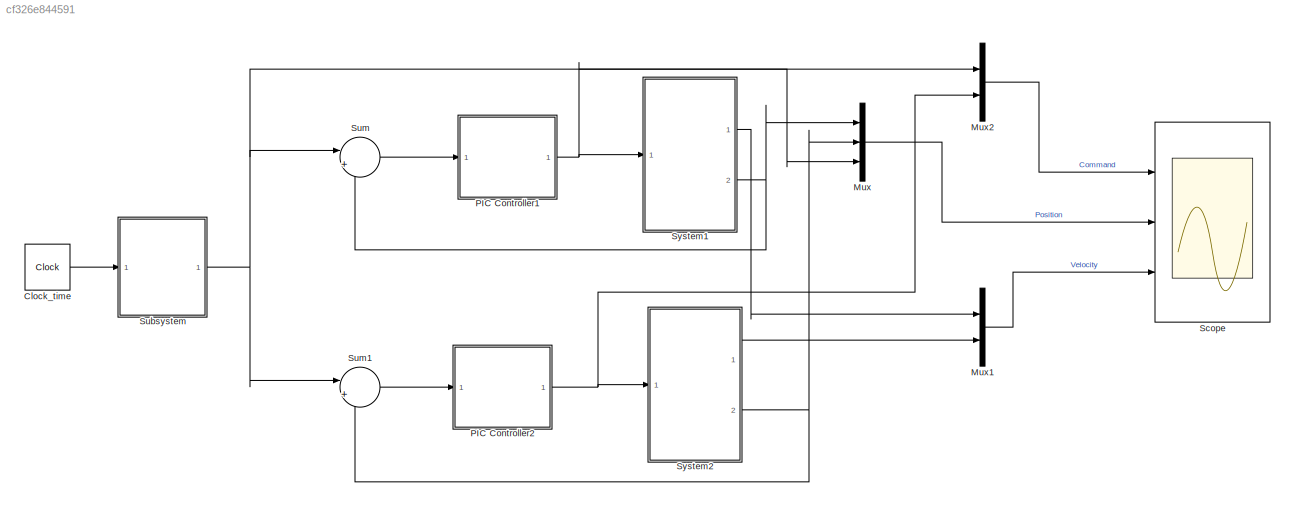
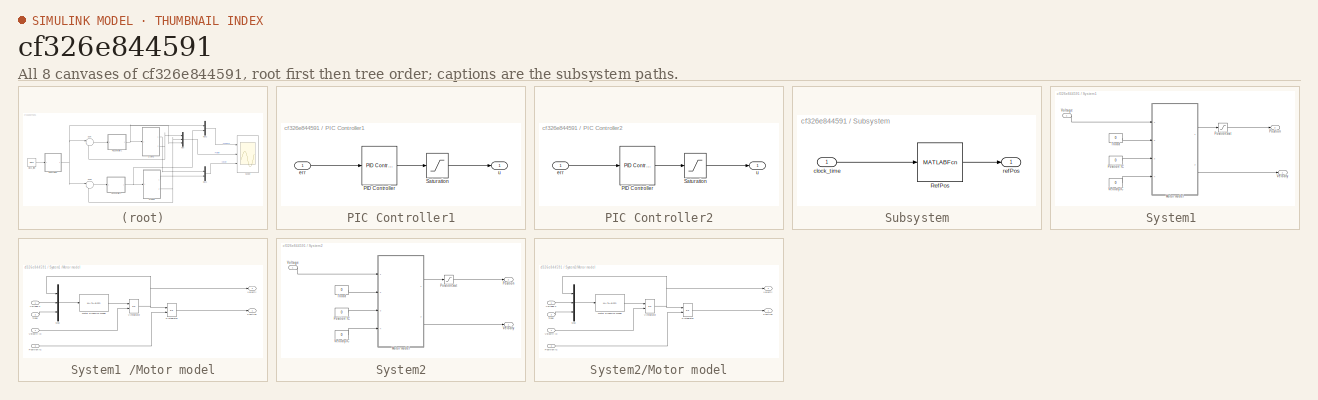
[diagram: thumbnail index - all 8 canvases of the model, root first then tree order]
MODEL slx_cf326e844591
KIND model
CONFIG AbsTol = auto
CONFIG EnableMultiTasking = off
CONFIG FixedStep = 1e-3
CONFIG MaxStep = auto
CONFIG MinStep = auto
CONFIG RelTol = 1e-3
CONFIG SampleTimeConstraint = Unconstrained
CONFIG Solver = ode5
CONFIG SolverName = ode5
CONFIG StartTime = 0.0
CONFIG StopTime = 1
BLOCK [Clock] Clock_time
BLOCK [Mux] Mux
  DisplayOption = bar
  Inputs = 3
  Ports = [3, 1]
BLOCK [Mux] Mux1
  DisplayOption = bar
  Inputs = 2
  Ports = [2, 1]
BLOCK [Mux] Mux2
  DisplayOption = bar
  Inputs = 2
  Ports = [2, 1]
BLOCK [SubSystem] PIC Controller1
  Ports = [1, 1]
  RequestExecContextInheritance = off
  Variant = off
BLOCK [Reference] PIC Controller1/PID Controller  REF=simulink/Continuous/PID Controller
  Ports = [1, 1]
  SourceBlock = simulink/Continuous/PID Controller
  SourceProductBaseCode = SL
  SourceProductName = Simulink
  SourceType = PID 1dof
BLOCK [Saturate] PIC Controller1/Saturation
  InputPortMap = u0
  LowerLimit = -15
  Ports = [1, 1]
  UpperLimit = 15
BLOCK [Inport] PIC Controller1/err
  IconDisplay = Port number
BLOCK [Outport] PIC Controller1/u
  IconDisplay = Port number
BLOCK [SubSystem] PIC Controller2
  Ports = [1, 1]
  RequestExecContextInheritance = off
  Variant = off
BLOCK [Reference] PIC Controller2/PID Controller  REF=simulink/Continuous/PID Controller
  Ports = [1, 1]
  SourceBlock = simulink/Continuous/PID Controller
  SourceProductBaseCode = SL
  SourceProductName = Simulink
  SourceType = PID 1dof
BLOCK [Saturate] PIC Controller2/Saturation
  InputPortMap = u0
  LowerLimit = -15
  Ports = [1, 1]
  UpperLimit = 15
BLOCK [Inport] PIC Controller2/err
  IconDisplay = Port number
BLOCK [Outport] PIC Controller2/u
  IconDisplay = Port number
BLOCK [Scope] Scope
  NumInputPorts = 3
  Ports = [3]
  ScopeSpecificationString = Simulink.scopes.TimeScopeBlockCfg('CurrentConfiguration', extmgr.ConfigurationSet(extmgr.Configuration('Core','General UI',true),extmgr.Configuration('Core','Source UI',true),extmgr.Configuration('Sources','WiredSimulink',true),extmgr.Configuration('Visuals','Time Domain',true,'SerializedDisplays',{struct('MinYLimReal','4.95926','MaxYLimReal','17.51028','YLabelReal','','MinYLimMag','4.95926','MaxY...<+2755ch>
BLOCK [SubSystem] Subsystem
  Ports = [1, 1]
  RequestExecContextInheritance = off
  Variant = off
BLOCK [MATLABFcn] Subsystem/RefPos
  MATLABFcn = Poly5Position
  Ports = [1, 1]
BLOCK [Inport] Subsystem/clock_time
  IconDisplay = Port number
BLOCK [Outport] Subsystem/refPos
  IconDisplay = Port number
BLOCK [Sum] Sum
  IconShape = round
  InputSameDT = off
  Inputs = |+-
  OutDataTypeStr = Inherit: Inherit via internal rule
  Ports = [2, 1]
  SaturateOnIntegerOverflow = off
BLOCK [Sum] Sum1
  IconShape = round
  InputSameDT = off
  Inputs = |+-
  OutDataTypeStr = Inherit: Inherit via internal rule
  Ports = [2, 1]
  SaturateOnIntegerOverflow = off
BLOCK [SubSystem] System1 
  Ports = [1, 2]
  RequestExecContextInheritance = off
  Variant = off
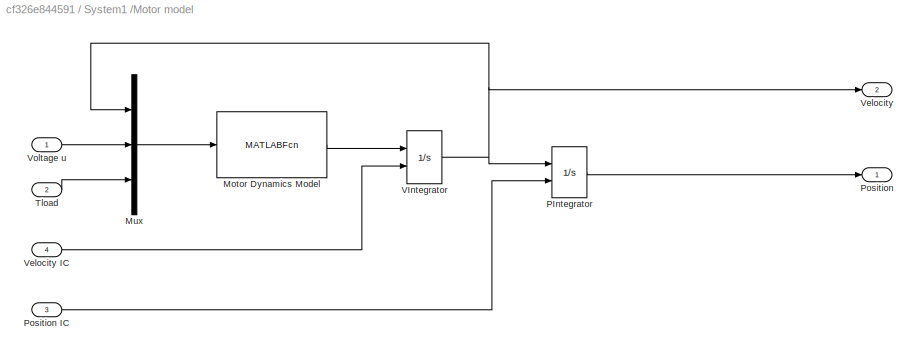
BLOCK [SubSystem] System1 /Motor model
  Ports = [4, 2]
  RequestExecContextInheritance = off
  Variant = off
BLOCK [MATLABFcn] System1 /Motor model/Motor Dynamics Model
  MATLABFcn = MotorDynamicsModel
  Ports = [1, 1]
BLOCK [Mux] System1 /Motor model/Mux
  DisplayOption = bar
  Inputs = 3
  Ports = [3, 1]
BLOCK [Integrator] System1 /Motor model/PIntegrator
  InitialConditionSource = external
  Ports = [2, 1]
BLOCK [Outport] System1 /Motor model/Position
  IconDisplay = Port number
BLOCK [Inport] System1 /Motor model/Position IC
  IconDisplay = Port number
  Port = 3
BLOCK [Inport] System1 /Motor model/Tload
  IconDisplay = Port number
  Port = 2
BLOCK [Integrator] System1 /Motor model/VIntegrator 
  InitialConditionSource = external
  Ports = [2, 1]
BLOCK [Outport] System1 /Motor model/Velocity
  IconDisplay = Port number
  Port = 2
BLOCK [Inport] System1 /Motor model/Velocity IC
  IconDisplay = Port number
  Port = 4
BLOCK [Inport] System1 /Motor model/Voltage u
  IconDisplay = Port number
BLOCK [Outport] System1 /Position
  IconDisplay = Port number
  Port = 2
BLOCK [Constant] System1 /Position IC
  Value = 0
BLOCK [Saturate] System1 /PositionSat
  InputPortMap = u0
  Ports = [1, 1]
BLOCK [Constant] System1 /Tload
  Value = 0
BLOCK [Outport] System1 /Velocity
  IconDisplay = Port number
BLOCK [Constant] System1 /Velocity IC
  Value = 0
BLOCK [Inport] System1 /Voltage
  IconDisplay = Port number
BLOCK [SubSystem] System2
  Ports = [1, 2]
  RequestExecContextInheritance = off
  Variant = off
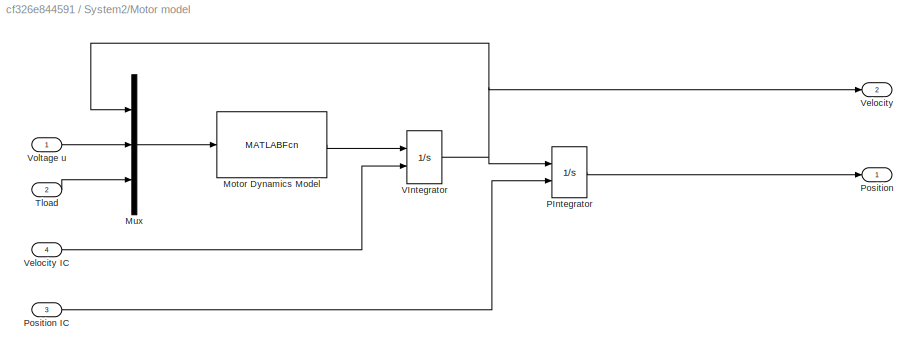
BLOCK [SubSystem] System2/Motor model
  Ports = [4, 2]
  RequestExecContextInheritance = off
  Variant = off
BLOCK [MATLABFcn] System2/Motor model/Motor Dynamics Model
  MATLABFcn = MotorDynamicsModel
  Ports = [1, 1]
BLOCK [Mux] System2/Motor model/Mux
  DisplayOption = bar
  Inputs = 3
  Ports = [3, 1]
BLOCK [Integrator] System2/Motor model/PIntegrator
  InitialConditionSource = external
  Ports = [2, 1]
BLOCK [Outport] System2/Motor model/Position
  IconDisplay = Port number
BLOCK [Inport] System2/Motor model/Position IC
  IconDisplay = Port number
  Port = 3
BLOCK [Inport] System2/Motor model/Tload
  IconDisplay = Port number
  Port = 2
BLOCK [Integrator] System2/Motor model/VIntegrator 
  InitialConditionSource = external
  Ports = [2, 1]
BLOCK [Outport] System2/Motor model/Velocity
  IconDisplay = Port number
  Port = 2
BLOCK [Inport] System2/Motor model/Velocity IC
  IconDisplay = Port number
  Port = 4
BLOCK [Inport] System2/Motor model/Voltage u
  IconDisplay = Port number
BLOCK [Outport] System2/Position
  IconDisplay = Port number
  Port = 2
BLOCK [Constant] System2/Position IC
  Value = 0
BLOCK [Saturate] System2/PositionSat
  InputPortMap = u0
  Ports = [1, 1]
BLOCK [Constant] System2/Tload
  Value = 0
BLOCK [Outport] System2/Velocity
  IconDisplay = Port number
BLOCK [Constant] System2/Velocity IC
  Value = 0
BLOCK [Inport] System2/Voltage
  IconDisplay = Port number
LINE Clock_time:1 -> Subsystem:1
LINE Mux1:1 -> Scope:3
LINE Mux2:1 -> Scope:1
LINE Mux:1 -> Scope:2
LINE PIC Controller1/PID Controller:1 -> PIC Controller1/Saturation:1
LINE PIC Controller1/Saturation:1 -> PIC Controller1/u:1
LINE PIC Controller1/err:1 -> PIC Controller1/PID Controller:1
NET PIC Controller1:1 -> Mux2:1, System1 :1
LINE PIC Controller2/PID Controller:1 -> PIC Controller2/Saturation:1
LINE PIC Controller2/Saturation:1 -> PIC Controller2/u:1
LINE PIC Controller2/err:1 -> PIC Controller2/PID Controller:1
NET PIC Controller2:1 -> Mux2:2, System2:1
LINE Subsystem/RefPos:1 -> Subsystem/refPos:1
LINE Subsystem/clock_time:1 -> Subsystem/RefPos:1
NET Subsystem:1 -> Mux:3, Sum1:1, Sum:1
LINE Sum1:1 -> PIC Controller2:1
LINE Sum:1 -> PIC Controller1:1
LINE System1 /Motor model/Motor Dynamics Model:1 -> System1 /Motor model/VIntegrator :1
LINE System1 /Motor model/Mux:1 -> System1 /Motor model/Motor Dynamics Model:1
LINE System1 /Motor model/PIntegrator:1 -> System1 /Motor model/Position:1
LINE System1 /Motor model/Position IC:1 -> System1 /Motor model/PIntegrator:2
LINE System1 /Motor model/Tload:1 -> System1 /Motor model/Mux:3
NET System1 /Motor model/VIntegrator :1 -> System1 /Motor model/Mux:1, System1 /Motor model/PIntegrator:1, System1 /Motor model/Velocity:1
LINE System1 /Motor model/Velocity IC:1 -> System1 /Motor model/VIntegrator :2
LINE System1 /Motor model/Voltage u:1 -> System1 /Motor model/Mux:2
LINE System1 /Motor model:1 -> System1 /PositionSat:1
LINE System1 /Motor model:2 -> System1 /Velocity:1
LINE System1 /Position IC:1 -> System1 /Motor model:3
LINE System1 /PositionSat:1 -> System1 /Position:1
LINE System1 /Tload:1 -> System1 /Motor model:2
LINE System1 /Velocity IC:1 -> System1 /Motor model:4
LINE System1 /Voltage:1 -> System1 /Motor model:1
LINE System1 :1 -> Mux1:1
NET System1 :2 -> Mux:1, Sum:2
LINE System2/Motor model/Motor Dynamics Model:1 -> System2/Motor model/VIntegrator :1
LINE System2/Motor model/Mux:1 -> System2/Motor model/Motor Dynamics Model:1
LINE System2/Motor model/PIntegrator:1 -> System2/Motor model/Position:1
LINE System2/Motor model/Position IC:1 -> System2/Motor model/PIntegrator:2
LINE System2/Motor model/Tload:1 -> System2/Motor model/Mux:3
NET System2/Motor model/VIntegrator :1 -> System2/Motor model/Mux:1, System2/Motor model/PIntegrator:1, System2/Motor model/Velocity:1
LINE System2/Motor model/Velocity IC:1 -> System2/Motor model/VIntegrator :2
LINE System2/Motor model/Voltage u:1 -> System2/Motor model/Mux:2
LINE System2/Motor model:1 -> System2/PositionSat:1
LINE System2/Motor model:2 -> System2/Velocity:1
LINE System2/Position IC:1 -> System2/Motor model:3
LINE System2/PositionSat:1 -> System2/Position:1
LINE System2/Tload:1 -> System2/Motor model:2
LINE System2/Velocity IC:1 -> System2/Motor model:4
LINE System2/Voltage:1 -> System2/Motor model:1
LINE System2:1 -> Mux1:2
NET System2:2 -> Mux:2, Sum1:2
note: NET lines group one-source signal fan-out (src -> all destinations, sorted); 1:1 wires keep LINE
